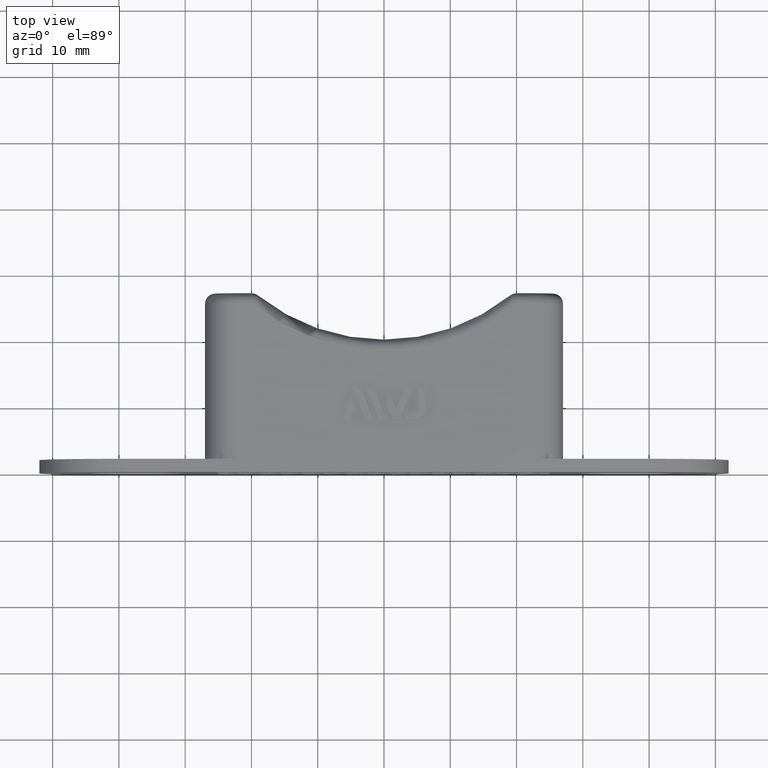
[diagram: clean part render]
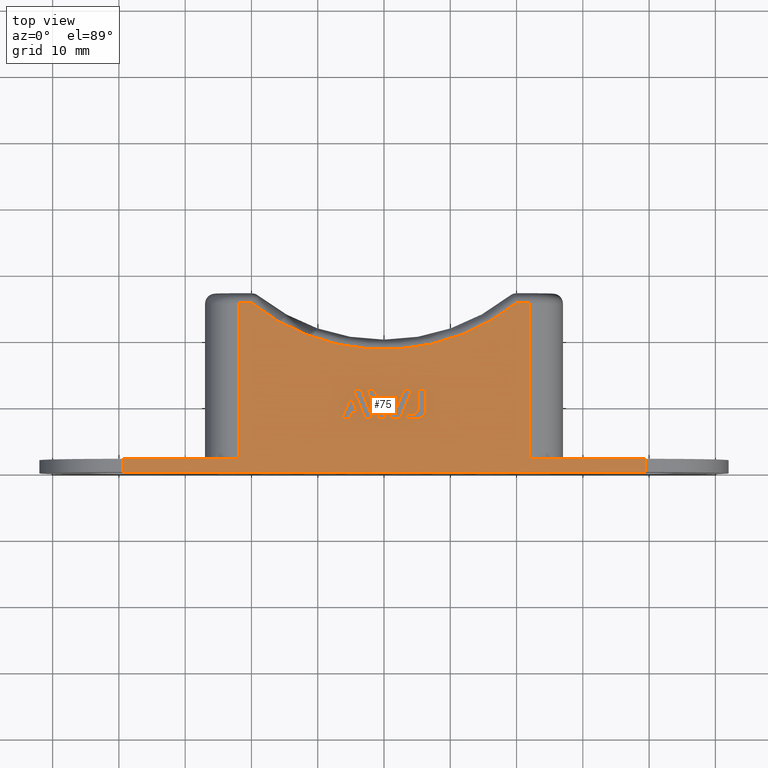
[diagram: same view with one face highlighted and labeled with its STEP entity id]
A machine part, top view. The second image highlights one B-rep face of the part: STEP entity #75.
In plain terms, the highlighted planar face has unit normal (0, 0, -1).
Its self-contained STEP definition (entity closure, byte-faithful):
#75 = ADVANCED_FACE( '', ( #422, #423, #424, #425, #426, #427 ), #428, .F. );
#422 = FACE_BOUND( '', #1162, .T. );
#423 = FACE_BOUND( '', #1163, .T. );
#424 = FACE_OUTER_BOUND( '', #1164, .T. );
#425 = FACE_BOUND( '', #1165, .T. );
#426 = FACE_BOUND( '', #1166, .T. );
#427 = FACE_BOUND( '', #1167, .T. );
#428 = PLANE( '', #1168 );
#1162 = EDGE_LOOP( '', ( #1902, #1903, #1904, #1905, #1906, #1907, #1908 ) );
#1163 = EDGE_LOOP( '', ( #1909, #1910, #1911, #1912 ) );
#1164 = EDGE_LOOP( '', ( #1913, #1914, #1915, #1916, #1917, #1918, #1919, #1920, #1921, #1922 ) );
#1165 = EDGE_LOOP( '', ( #1923, #1924, #1925, #1926, #1927 ) );
#1166 = EDGE_LOOP( '', ( #1928, #1929, #1930, #1931 ) );
#1167 = EDGE_LOOP( '', ( #1932, #1933, #1934, #1935, #1936, #1937, #1938, #1939 ) );
#1168 = AXIS2_PLACEMENT_3D( '', #1940, #1941, #1942 );
#1902 = ORIENTED_EDGE( '', *, *, #4700, .F. );
#1903 = ORIENTED_EDGE( '', *, *, #4701, .F. );
#1904 = ORIENTED_EDGE( '', *, *, #4702, .F. );
#1905 = ORIENTED_EDGE( '', *, *, #4703, .F. );
#1906 = ORIENTED_EDGE( '', *, *, #4704, .F. );
#1907 = ORIENTED_EDGE( '', *, *, #4705, .F. );
#1908 = ORIENTED_EDGE( '', *, *, #4706, .F. );
#1909 = ORIENTED_EDGE( '', *, *, #4707, .F. );
#1910 = ORIENTED_EDGE( '', *, *, #4708, .F. );
#1911 = ORIENTED_EDGE( '', *, *, #4709, .F. );
#1912 = ORIENTED_EDGE( '', *, *, #4710, .F. );
#1913 = ORIENTED_EDGE( '', *, *, #4711, .T. );
#1914 = ORIENTED_EDGE( '', *, *, #4712, .T. );
#1915 = ORIENTED_EDGE( '', *, *, #4713, .T. );
#1916 = ORIENTED_EDGE( '', *, *, #4714, .T. );
#1917 = ORIENTED_EDGE( '', *, *, #4715, .T. );
#1918 = ORIENTED_EDGE( '', *, *, #4716, .T. );
#1919 = ORIENTED_EDGE( '', *, *, #4717, .T. );
#1920 = ORIENTED_EDGE( '', *, *, #4718, .T. );
#1921 = ORIENTED_EDGE( '', *, *, #4719, .T. );
#1922 = ORIENTED_EDGE( '', *, *, #4720, .T. );
#1923 = ORIENTED_EDGE( '', *, *, #4721, .F. );
#1924 = ORIENTED_EDGE( '', *, *, #4722, .F. );
#1925 = ORIENTED_EDGE( '', *, *, #4723, .F. );
#1926 = ORIENTED_EDGE( '', *, *, #4724, .F. );
#1927 = ORIENTED_EDGE( '', *, *, #4725, .F. );
#1928 = ORIENTED_EDGE( '', *, *, #4726, .F. );
#1929 = ORIENTED_EDGE( '', *, *, #4727, .F. );
#1930 = ORIENTED_EDGE( '', *, *, #4728, .F. );
#1931 = ORIENTED_EDGE( '', *, *, #4729, .F. );
#1932 = ORIENTED_EDGE( '', *, *, #4730, .F. );
#1933 = ORIENTED_EDGE( '', *, *, #4731, .F. );
#1934 = ORIENTED_EDGE( '', *, *, #4732, .F. );
#1935 = ORIENTED_EDGE( '', *, *, #4733, .F. );
#1936 = ORIENTED_EDGE( '', *, *, #4734, .F. );
#1937 = ORIENTED_EDGE( '', *, *, #4735, .F. );
#1938 = ORIENTED_EDGE( '', *, *, #4736, .F. );
#1939 = ORIENTED_EDGE( '', *, *, #4737, .F. );
#1940 = CARTESIAN_POINT( '', ( 0.000000000000000, 50.5000000000000, 12.5000000000000 ) );
#1941 = DIRECTION( '', ( 0.000000000000000, 0.000000000000000, -1.00000000000000 ) );
#1942 = DIRECTION( '', ( 0.000000000000000, 1.00000000000000, 0.000000000000000 ) );
#4700 = EDGE_CURVE( '', #5580, #5581, #5582, .T. );
#4701 = EDGE_CURVE( '', #5583, #5580, #5584, .T. );
#4702 = EDGE_CURVE( '', #5585, #5583, #5586, .T. );
#4703 = EDGE_CURVE( '', #5587, #5585, #5588, .T. );
#4704 = EDGE_CURVE( '', #5589, #5587, #5590, .T. );
#4705 = EDGE_CURVE( '', #5591, #5589, #5592, .T. );
#4706 = EDGE_CURVE( '', #5581, #5591, #5593, .T. );
#4707 = EDGE_CURVE( '', #5594, #5595, #5596, .T. );
#4708 = EDGE_CURVE( '', #5597, #5594, #5598, .T. );
#4709 = EDGE_CURVE( '', #5599, #5597, #5600, .T. );
#4710 = EDGE_CURVE( '', #5595, #5599, #5601, .T. );
#4711 = EDGE_CURVE( '', #5602, #5603, #5604, .T. );
#4712 = EDGE_CURVE( '', #5603, #5605, #5606, .T. );
#4713 = EDGE_CURVE( '', #5605, #5607, #5608, .T. );
#4714 = EDGE_CURVE( '', #5607, #5609, #5610, .T. );
#4715 = EDGE_CURVE( '', #5609, #5611, #5612, .T. );
#4716 = EDGE_CURVE( '', #5611, #5613, #5614, .T. );
#4717 = EDGE_CURVE( '', #5613, #5615, #5616, .T. );
#4718 = EDGE_CURVE( '', #5615, #5617, #5618, .T. );
#4719 = EDGE_CURVE( '', #5617, #5619, #5620, .T. );
#4720 = EDGE_CURVE( '', #5619, #5602, #5621, .T. );
#4721 = EDGE_CURVE( '', #5622, #5623, #5624, .T. );
#4722 = EDGE_CURVE( '', #5625, #5622, #5626, .T. );
#4723 = EDGE_CURVE( '', #5627, #5625, #5628, .T. );
#4724 = EDGE_CURVE( '', #5629, #5627, #5630, .T. );
#4725 = EDGE_CURVE( '', #5623, #5629, #5631, .T. );
#4726 = EDGE_CURVE( '', #5632, #5633, #5634, .T. );
#4727 = EDGE_CURVE( '', #5635, #5632, #5636, .T. );
#4728 = EDGE_CURVE( '', #5637, #5635, #5638, .T. );
#4729 = EDGE_CURVE( '', #5633, #5637, #5639, .T. );
#4730 = EDGE_CURVE( '', #5640, #5641, #5642, .T. );
#4731 = EDGE_CURVE( '', #5643, #5640, #5644, .T. );
#4732 = EDGE_CURVE( '', #5645, #5643, #5646, .T. );
#4733 = EDGE_CURVE( '', #5647, #5645, #5648, .T. );
#4734 = EDGE_CURVE( '', #5649, #5647, #5650, .T. );
#4735 = EDGE_CURVE( '', #5651, #5649, #5652, .T. );
#4736 = EDGE_CURVE( '', #5653, #5651, #5654, .T. );
#4737 = EDGE_CURVE( '', #5641, #5653, #5655, .T. );
#5580 = VERTEX_POINT( '', #7040 );
#5581 = VERTEX_POINT( '', #7041 );
#5582 = LINE( '', #7042, #7043 );
#5583 = VERTEX_POINT( '', #7044 );
#5584 = LINE( '', #7045, #7046 );
#5585 = VERTEX_POINT( '', #7047 );
#5586 = LINE( '', #7048, #7049 );
#5587 = VERTEX_POINT( '', #7050 );
#5588 = LINE( '', #7051, #7052 );
#5589 = VERTEX_POINT( '', #7053 );
#5590 = LINE( '', #7054, #7055 );
#5591 = VERTEX_POINT( '', #7056 );
#5592 = LINE( '', #7057, #7058 );
#5593 = LINE( '', #7059, #7060 );
#5594 = VERTEX_POINT( '', #7061 );
#5595 = VERTEX_POINT( '', #7062 );
#5596 = LINE( '', #7063, #7064 );
#5597 = VERTEX_POINT( '', #7065 );
#5598 = LINE( '', #7066, #7067 );
#5599 = VERTEX_POINT( '', #7068 );
#5600 = LINE( '', #7069, #7070 );
#5601 = LINE( '', #7071, #7072 );
#5602 = VERTEX_POINT( '', #7073 );
#5603 = VERTEX_POINT( '', #7074 );
#5604 = CIRCLE( '', #7075, 32.0000000000000 );
#5605 = VERTEX_POINT( '', #7076 );
#5606 = LINE( '', #7077, #7078 );
#5607 = VERTEX_POINT( '', #7079 );
#5608 = LINE( '', #7080, #7081 );
#5609 = VERTEX_POINT( '', #7082 );
#5610 = LINE( '', #7083, #7084 );
#5611 = VERTEX_POINT( '', #7085 );
#5612 = LINE( '', #7086, #7087 );
#5613 = VERTEX_POINT( '', #7088 );
#5614 = LINE( '', #7089, #7090 );
#5615 = VERTEX_POINT( '', #7091 );
#5616 = LINE( '', #7092, #7093 );
#5617 = VERTEX_POINT( '', #7094 );
#5618 = LINE( '', #7095, #7096 );
#5619 = VERTEX_POINT( '', #7097 );
#5620 = LINE( '', #7098, #7099 );
#5621 = LINE( '', #7100, #7101 );
#5622 = VERTEX_POINT( '', #7102 );
#5623 = VERTEX_POINT( '', #7103 );
#5624 = LINE( '', #7104, #7105 );
#5625 = VERTEX_POINT( '', #7106 );
#5626 = LINE( '', #7107, #7108 );
#5627 = VERTEX_POINT( '', #7109 );
#5628 = LINE( '', #7110, #7111 );
#5629 = VERTEX_POINT( '', #7112 );
#5630 = LINE( '', #7113, #7114 );
#5631 = LINE( '', #7115, #7116 );
#5632 = VERTEX_POINT( '', #7117 );
#5633 = VERTEX_POINT( '', #7118 );
#5634 = LINE( '', #7119, #7120 );
#5635 = VERTEX_POINT( '', #7121 );
#5636 = LINE( '', #7122, #7123 );
#5637 = VERTEX_POINT( '', #7124 );
#5638 = LINE( '', #7125, #7126 );
#5639 = LINE( '', #7127, #7128 );
#5640 = VERTEX_POINT( '', #7129 );
#5641 = VERTEX_POINT( '', #7130 );
#5642 = CIRCLE( '', #7131, 1.50000000000000 );
#5643 = VERTEX_POINT( '', #7132 );
#5644 = LINE( '', #7133, #7134 );
#5645 = VERTEX_POINT( '', #7135 );
#5646 = LINE( '', #7136, #7137 );
#5647 = VERTEX_POINT( '', #7138 );
#5648 = LINE( '', #7139, #7140 );
#5649 = VERTEX_POINT( '', #7141 );
#5650 = CIRCLE( '', #7142, 0.999999999999997 );
#5651 = VERTEX_POINT( '', #7143 );
#5652 = LINE( '', #7144, #7145 );
#5653 = VERTEX_POINT( '', #7146 );
#5654 = LINE( '', #7147, #7148 );
#5655 = LINE( '', #7149, #7150 );
#7040 = CARTESIAN_POINT( '', ( 2.40489711829795, 8.00000000000001, 12.5000000000000 ) );
#7041 = CARTESIAN_POINT( '', ( 4.22159390166011, 12.4967077130809, 12.5000000000000 ) );
#7042 = CARTESIAN_POINT( '', ( 2.40489711829795, 8.00000000000001, 12.5000000000000 ) );
#7043 = VECTOR( '', #9198, 1000.00000000000 );
#7044 = CARTESIAN_POINT( '', ( 1.17656065381540, 8.00000000000001, 12.5000000000000 ) );
#7045 = CARTESIAN_POINT( '', ( 1.17656065381540, 8.00000000000001, 12.5000000000000 ) );
#7046 = VECTOR( '', #9199, 1000.00000000000 );
#7047 = CARTESIAN_POINT( '', ( 0.250796616378179, 10.2909463051132, 12.5000000000000 ) );
#7048 = CARTESIAN_POINT( '', ( 0.250796616378178, 10.2909463051132, 12.5000000000000 ) );
#7049 = VECTOR( '', #9200, 1000.00000000000 );
#7050 = CARTESIAN_POINT( '', ( 0.831793978898428, 11.7292171844870, 12.5000000000000 ) );
#7051 = CARTESIAN_POINT( '', ( 0.831793978898429, 11.7292171844870, 12.5000000000000 ) );
#7052 = VECTOR( '', #9201, 1000.00000000000 );
#7053 = CARTESIAN_POINT( '', ( 1.79060116130350, 9.35619645562919, 12.5000000000000 ) );
#7054 = CARTESIAN_POINT( '', ( 1.79060116130350, 9.35619645562919, 12.5000000000000 ) );
#7055 = VECTOR( '', #9202, 1000.00000000000 );
#7056 = CARTESIAN_POINT( '', ( 3.05959917661961, 12.4967077130809, 12.5000000000000 ) );
#7057 = CARTESIAN_POINT( '', ( 3.05959917661961, 12.4967077130809, 12.5000000000000 ) );
#7058 = VECTOR( '', #9203, 1000.00000000000 );
#7059 = CARTESIAN_POINT( '', ( 4.22159390166011, 12.4967077130809, 12.5000000000000 ) );
#7060 = VECTOR( '', #9204, 1000.00000000000 );
#7061 = CARTESIAN_POINT( '', ( -1.65762156620353, 8.00000000000001, 12.5000000000000 ) );
#7062 = CARTESIAN_POINT( '', ( -3.47460385195514, 12.4967077130809, 12.5000000000000 ) );
#7063 = CARTESIAN_POINT( '', ( -1.65762156620353, 8.00000000000001, 12.5000000000000 ) );
#7064 = VECTOR( '', #9205, 1000.00000000000 );
#7065 = CARTESIAN_POINT( '', ( -2.81951861937395, 8.00000000000001, 12.5000000000000 ) );
#7066 = CARTESIAN_POINT( '', ( -2.81951861937395, 8.00000000000001, 12.5000000000000 ) );
#7067 = VECTOR( '', #9206, 1000.00000000000 );
#7068 = CARTESIAN_POINT( '', ( -4.63624545561922, 12.4967077130809, 12.5000000000000 ) );
#7069 = CARTESIAN_POINT( '', ( -4.63624545561922, 12.4967077130809, 12.5000000000000 ) );
#7070 = VECTOR( '', #9207, 1000.00000000000 );
#7071 = CARTESIAN_POINT( '', ( -3.47460385195514, 12.4967077130809, 12.5000000000000 ) );
#7072 = VECTOR( '', #9208, 1000.00000000000 );
#7073 = CARTESIAN_POINT( '', ( 19.9749843554382, 25.5000000000000, 12.5000000000000 ) );
#7074 = CARTESIAN_POINT( '', ( -19.9749843554382, 25.5000000000000, 12.5000000000000 ) );
#7075 = AXIS2_PLACEMENT_3D( '', #9209, #9210, #9211 );
#7076 = CARTESIAN_POINT( '', ( -22.0000000000000, 25.5000000000000, 12.5000000000000 ) );
#7077 = CARTESIAN_POINT( '', ( -22.0000000000000, 25.5000000000000, 12.5000000000000 ) );
#7078 = VECTOR( '', #9212, 1000.00000000000 );
#7079 = CARTESIAN_POINT( '', ( -22.0000000000000, 2.00000000000000, 12.5000000000000 ) );
#7080 = CARTESIAN_POINT( '', ( -22.0000000000000, 2.00000000000000, 12.5000000000000 ) );
#7081 = VECTOR( '', #9213, 1000.00000000000 );
#7082 = CARTESIAN_POINT( '', ( -39.5000000000000, 2.00000000000000, 12.5000000000000 ) );
#7083 = CARTESIAN_POINT( '', ( -27.0000000000000, 2.00000000000000, 12.5000000000000 ) );
#7084 = VECTOR( '', #9214, 1000.00000000000 );
#7085 = CARTESIAN_POINT( '', ( -39.5000000000000, 0.000000000000000, 12.5000000000000 ) );
#7086 = CARTESIAN_POINT( '', ( -39.5000000000000, 0.000000000000000, 12.5000000000000 ) );
#7087 = VECTOR( '', #9215, 1000.00000000000 );
#7088 = CARTESIAN_POINT( '', ( 39.5000000000000, 0.000000000000000, 12.5000000000000 ) );
#7089 = CARTESIAN_POINT( '', ( -52.0000000000000, 0.000000000000000, 12.5000000000000 ) );
#7090 = VECTOR( '', #9216, 1000.00000000000 );
#7091 = CARTESIAN_POINT( '', ( 39.5000000000000, 2.00000000000000, 12.5000000000000 ) );
#7092 = CARTESIAN_POINT( '', ( 39.5000000000000, 2.00000000000000, 12.5000000000000 ) );
#7093 = VECTOR( '', #9217, 1000.00000000000 );
#7094 = CARTESIAN_POINT( '', ( 22.0000000000000, 2.00000000000000, 12.5000000000000 ) );
#7095 = CARTESIAN_POINT( '', ( 52.0000000000000, 2.00000000000000, 12.5000000000000 ) );
#7096 = VECTOR( '', #9218, 1000.00000000000 );
#7097 = CARTESIAN_POINT( '', ( 22.0000000000000, 25.5000000000000, 12.5000000000000 ) );
#7098 = CARTESIAN_POINT( '', ( 22.0000000000000, 27.0000000000000, 12.5000000000000 ) );
#7099 = VECTOR( '', #9219, 1000.00000000000 );
#7100 = CARTESIAN_POINT( '', ( 19.4422220952236, 25.5000000000000, 12.5000000000000 ) );
#7101 = VECTOR( '', #9220, 1000.00000000000 );
#7102 = CARTESIAN_POINT( '', ( -5.19199839633592, 8.00000000000001, 12.5000000000000 ) );
#7103 = CARTESIAN_POINT( '', ( -4.77208448722876, 9.03856753415103, 12.5000000000000 ) );
#7104 = CARTESIAN_POINT( '', ( -5.19199839633592, 8.00000000000001, 12.5000000000000 ) );
#7105 = VECTOR( '', #9221, 1000.00000000000 );
#7106 = CARTESIAN_POINT( '', ( -6.35364000000000, 8.00000000000001, 12.5000000000000 ) );
#7107 = CARTESIAN_POINT( '', ( -6.35364000000000, 8.00000000000001, 12.5000000000000 ) );
#7108 = VECTOR( '', #9222, 1000.00000000000 );
#7109 = CARTESIAN_POINT( '', ( -4.99163582471184, 11.3715127433957, 12.5000000000000 ) );
#7110 = CARTESIAN_POINT( '', ( -4.99163582471184, 11.3715127433957, 12.5000000000000 ) );
#7111 = VECTOR( '', #9223, 1000.00000000000 );
#7112 = CARTESIAN_POINT( '', ( -4.04950047920620, 9.03856753415103, 12.5000000000000 ) );
#7113 = CARTESIAN_POINT( '', ( -4.04950047920620, 9.03856753415103, 12.5000000000000 ) );
#7114 = VECTOR( '', #9224, 1000.00000000000 );
#7115 = CARTESIAN_POINT( '', ( -4.77208448722876, 9.03856753415103, 12.5000000000000 ) );
#7116 = VECTOR( '', #9225, 1000.00000000000 );
#7117 = CARTESIAN_POINT( '', ( 0.340474419546954, 8.00000000000001, 12.5000000000000 ) );
#7118 = CARTESIAN_POINT( '', ( -1.47650786620465, 12.4967077130809, 12.5000000000000 ) );
#7119 = CARTESIAN_POINT( '', ( 0.340474419546954, 8.00000000000001, 12.5000000000000 ) );
#7120 = VECTOR( '', #9226, 1000.00000000000 );
#7121 = CARTESIAN_POINT( '', ( -0.821505279051991, 8.00000000000001, 12.5000000000000 ) );
#7122 = CARTESIAN_POINT( '', ( -0.821505279051992, 8.00000000000001, 12.5000000000000 ) );
#7123 = VECTOR( '', #9227, 1000.00000000000 );
#7124 = CARTESIAN_POINT( '', ( -2.63848756480360, 12.4967077130809, 12.5000000000000 ) );
#7125 = CARTESIAN_POINT( '', ( -2.63848756480360, 12.4967077130809, 12.5000000000000 ) );
#7126 = VECTOR( '', #9228, 1000.00000000000 );
#7127 = CARTESIAN_POINT( '', ( -1.47650786620465, 12.4967077130809, 12.5000000000000 ) );
#7128 = VECTOR( '', #9229, 1000.00000000000 );
#7129 = CARTESIAN_POINT( '', ( 4.81907477182051, 8.00000000000001, 12.5000000000000 ) );
#7130 = CARTESIAN_POINT( '', ( 6.31907477182050, 9.50000000000001, 12.5000000000000 ) );
#7131 = AXIS2_PLACEMENT_3D( '', #9230, #9231, #9232 );
#7132 = CARTESIAN_POINT( '', ( 3.24098335256638, 8.00000000000001, 12.5000000000000 ) );
#7133 = CARTESIAN_POINT( '', ( 3.24098335256638, 8.00000000000001, 12.5000000000000 ) );
#7134 = VECTOR( '', #9233, 1000.00000000000 );
#7135 = CARTESIAN_POINT( '', ( 3.50517861036021, 8.65390620930045, 12.5000000000000 ) );
#7136 = CARTESIAN_POINT( '', ( 3.50517861036022, 8.65390620930046, 12.5000000000000 ) );
#7137 = VECTOR( '', #9234, 1000.00000000000 );
#7138 = CARTESIAN_POINT( '', ( 4.14390185782692, 8.65390620930044, 12.5000000000000 ) );
#7139 = CARTESIAN_POINT( '', ( 4.14390185782692, 8.65390620930045, 12.5000000000000 ) );
#7140 = VECTOR( '', #9235, 1000.00000000000 );
#7141 = CARTESIAN_POINT( '', ( 5.14390185782692, 9.65390620930044, 12.5000000000000 ) );
#7142 = AXIS2_PLACEMENT_3D( '', #9236, #9237, #9238 );
#7143 = CARTESIAN_POINT( '', ( 5.14390185782692, 12.4967077130809, 12.5000000000000 ) );
#7144 = CARTESIAN_POINT( '', ( 5.14390185782692, 12.4967077130809, 12.5000000000000 ) );
#7145 = VECTOR( '', #9239, 1000.00000000000 );
#7146 = CARTESIAN_POINT( '', ( 6.31907477182050, 12.4967077130809, 12.5000000000000 ) );
#7147 = CARTESIAN_POINT( '', ( 6.31907477182050, 12.4967077130809, 12.5000000000000 ) );
#7148 = VECTOR( '', #9240, 1000.00000000000 );
#7149 = CARTESIAN_POINT( '', ( 6.31907477182050, 9.50000000000001, 12.5000000000000 ) );
#7150 = VECTOR( '', #9241, 1000.00000000000 );
#9198 = DIRECTION( '', ( 0.374590451773198, 0.927190376050330, 0.000000000000000 ) );
#9199 = DIRECTION( '', ( 1.00000000000000, 0.000000000000000, 0.000000000000000 ) );
#9200 = DIRECTION( '', ( 0.374662832411421, -0.927161130553612, 0.000000000000000 ) );
#9201 = DIRECTION( '', ( -0.374550179126525, -0.927206645422846, 0.000000000000000 ) );
#9202 = DIRECTION( '', ( -0.374621565025663, 0.927177805503196, 0.000000000000000 ) );
#9203 = DIRECTION( '', ( -0.374644435760503, -0.927168564368796, 0.000000000000000 ) );
#9204 = DIRECTION( '', ( -1.00000000000000, 0.000000000000000, 0.000000000000000 ) );
#9205 = DIRECTION( '', ( -0.374641058409019, 0.927169929060563, 0.000000000000000 ) );
#9206 = DIRECTION( '', ( 1.00000000000000, 0.000000000000000, 0.000000000000000 ) );
#9207 = DIRECTION( '', ( 0.374595778945159, -0.927188223823226, 0.000000000000000 ) );
#9208 = DIRECTION( '', ( -1.00000000000000, 0.000000000000000, 0.000000000000000 ) );
#9209 = CARTESIAN_POINT( '', ( 0.000000000000000, 50.5000000000000, 12.5000000000000 ) );
#9210 = DIRECTION( '', ( 0.000000000000000, 0.000000000000000, -1.00000000000000 ) );
#9211 = DIRECTION( '', ( -1.00000000000000, 0.000000000000000, 0.000000000000000 ) );
#9212 = DIRECTION( '', ( -1.00000000000000, 0.000000000000000, 0.000000000000000 ) );
#9213 = DIRECTION( '', ( -6.93889390390723E-017, -1.00000000000000, 0.000000000000000 ) );
#9214 = DIRECTION( '', ( -1.00000000000000, 0.000000000000000, 0.000000000000000 ) );
#9215 = DIRECTION( '', ( -6.93889390390723E-017, -1.00000000000000, 0.000000000000000 ) );
#9216 = DIRECTION( '', ( 1.00000000000000, 0.000000000000000, 0.000000000000000 ) );
#9217 = DIRECTION( '', ( 6.93889390390723E-017, 1.00000000000000, 0.000000000000000 ) );
#9218 = DIRECTION( '', ( -1.00000000000000, 0.000000000000000, 0.000000000000000 ) );
#9219 = DIRECTION( '', ( 6.93889390390723E-017, 1.00000000000000, 0.000000000000000 ) );
#9220 = DIRECTION( '', ( -1.00000000000000, 0.000000000000000, 0.000000000000000 ) );
#9221 = DIRECTION( '', ( 0.374840934415178, 0.927089140205383, 0.000000000000000 ) );
#9222 = DIRECTION( '', ( 1.00000000000000, 5.55111512312578E-017, 0.000000000000000 ) );
#9223 = DIRECTION( '', ( -0.374565126786346, -0.927200607094025, 0.000000000000000 ) );
#9224 = DIRECTION( '', ( -0.374457717202846, 0.927243990558706, 0.000000000000000 ) );
#9225 = DIRECTION( '', ( 1.00000000000000, 0.000000000000000, 0.000000000000000 ) );
#9226 = DIRECTION( '', ( -0.374641058409019, 0.927169929060563, 0.000000000000000 ) );
#9227 = DIRECTION( '', ( 1.00000000000000, -2.22044604925031E-016, 0.000000000000000 ) );
#9228 = DIRECTION( '', ( 0.374641058409019, -0.927169929060563, 0.000000000000000 ) );
#9229 = DIRECTION( '', ( -1.00000000000000, 2.22044604925031E-016, 0.000000000000000 ) );
#9230 = CARTESIAN_POINT( '', ( 4.81907477182050, 9.50000000000001, 12.5000000000000 ) );
#9231 = DIRECTION( '', ( 0.000000000000000, 0.000000000000000, 1.00000000000000 ) );
#9232 = DIRECTION( '', ( 0.000000000000000, -1.00000000000000, 0.000000000000000 ) );
#9233 = DIRECTION( '', ( 1.00000000000000, 0.000000000000000, 0.000000000000000 ) );
#9234 = DIRECTION( '', ( -0.374606593415912, -0.927183854566787, 0.000000000000000 ) );
#9235 = DIRECTION( '', ( -1.00000000000000, 0.000000000000000, 0.000000000000000 ) );
#9236 = CARTESIAN_POINT( '', ( 4.14390185782692, 9.65390620930044, 12.5000000000000 ) );
#9237 = DIRECTION( '', ( 0.000000000000000, 0.000000000000000, -1.00000000000000 ) );
#9238 = DIRECTION( '', ( 1.00000000000000, 0.000000000000000, 0.000000000000000 ) );
#9239 = DIRECTION( '', ( -6.07153216591882E-017, -1.00000000000000, 0.000000000000000 ) );
#9240 = DIRECTION( '', ( -1.00000000000000, 0.000000000000000, 0.000000000000000 ) );
#9241 = DIRECTION( '', ( 6.07153216591882E-017, 1.00000000000000, 0.000000000000000 ) );